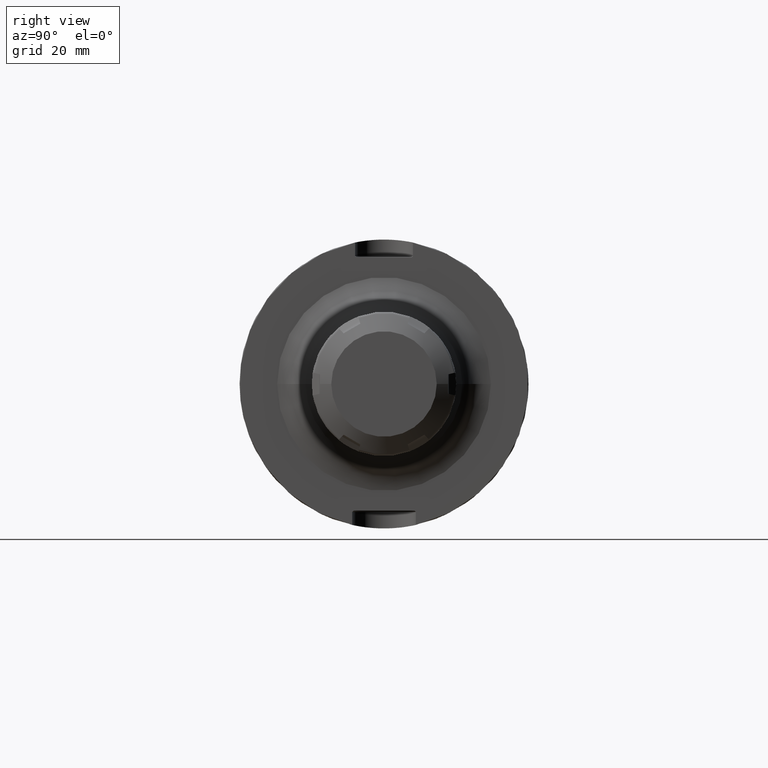
[diagram: clean part render]
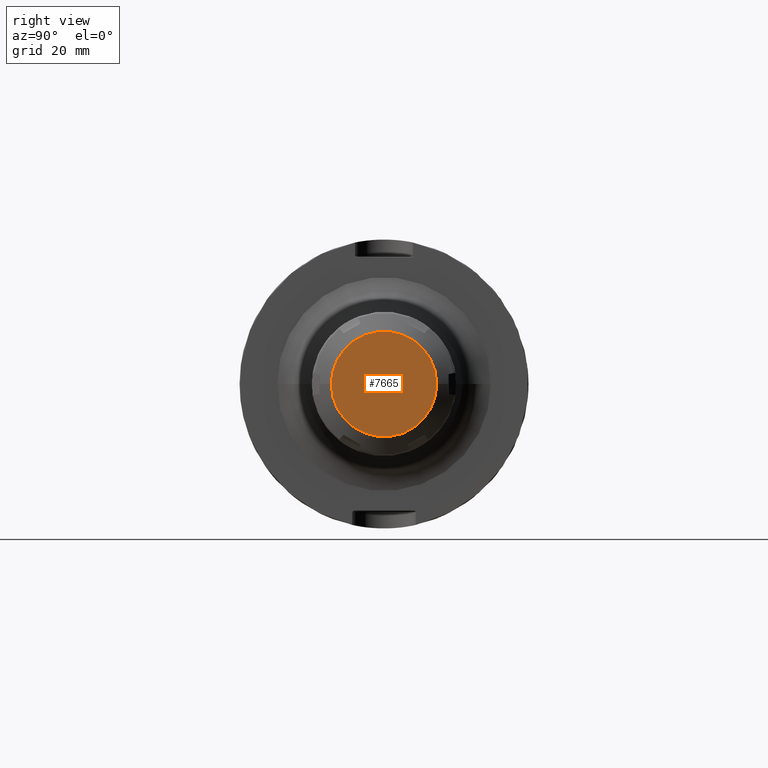
[diagram: same view with one face highlighted and labeled with its STEP entity id]
A machine part, right view. The second image highlights one B-rep face of the part: STEP entity #7665.
In plain terms, the highlighted planar face has unit normal (1, 0, 0).
Its self-contained STEP definition (entity closure, byte-faithful):
#6915=CARTESIAN_POINT('',(2.25E1,0.E0,0.E0));
#6916=DIRECTION('',(-1.E0,0.E0,0.E0));
#6917=DIRECTION('',(0.E0,1.E0,0.E0));
#6918=AXIS2_PLACEMENT_3D('',#6915,#6916,#6917);
#7283=CARTESIAN_POINT('',(2.25E1,0.E0,0.E0));
#7284=DIRECTION('',(1.E0,0.E0,0.E0));
#7285=DIRECTION('',(0.E0,1.E0,0.E0));
#7286=AXIS2_PLACEMENT_3D('',#7283,#7284,#7285);
#7546=CARTESIAN_POINT('',(2.25E1,1.825E1,0.E0));
#7547=CARTESIAN_POINT('',(2.25E1,-1.825E1,0.E0));
#7548=VERTEX_POINT('',#7546);
#7549=VERTEX_POINT('',#7547);
#7654=CARTESIAN_POINT('',(2.25E1,0.E0,0.E0));
#7655=DIRECTION('',(1.E0,0.E0,0.E0));
#7656=DIRECTION('',(0.E0,-1.E0,0.E0));
#7657=AXIS2_PLACEMENT_3D('',#7654,#7655,#7656);
#7658=PLANE('',#7657);
#7660=ORIENTED_EDGE('',*,*,#7659,.T.);
#7662=ORIENTED_EDGE('',*,*,#7661,.F.);
#7663=EDGE_LOOP('',(#7660,#7662));
#7664=FACE_OUTER_BOUND('',#7663,.F.);
#7665=ADVANCED_FACE('',(#7664),#7658,.T.);
#6919=CIRCLE('',#6918,1.825E1);
#7287=CIRCLE('',#7286,1.825E1);
#7659=EDGE_CURVE('',#7548,#7549,#6919,.T.);
#7661=EDGE_CURVE('',#7548,#7549,#7287,.T.);